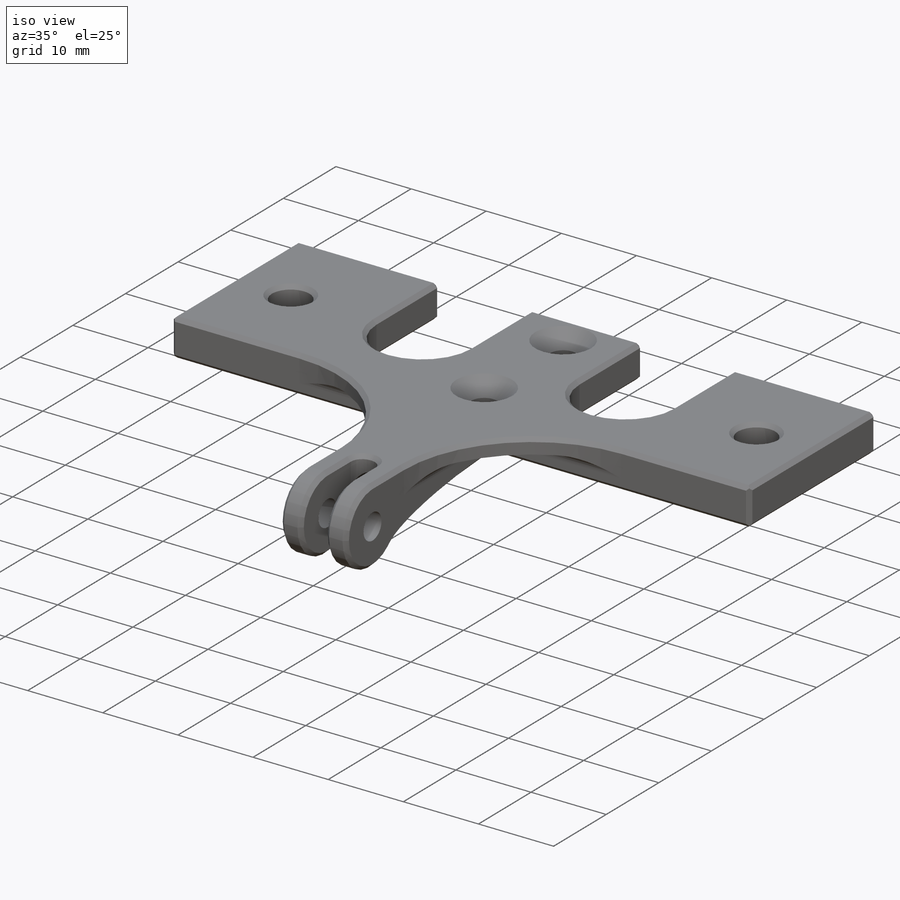
[diagram: iso view]
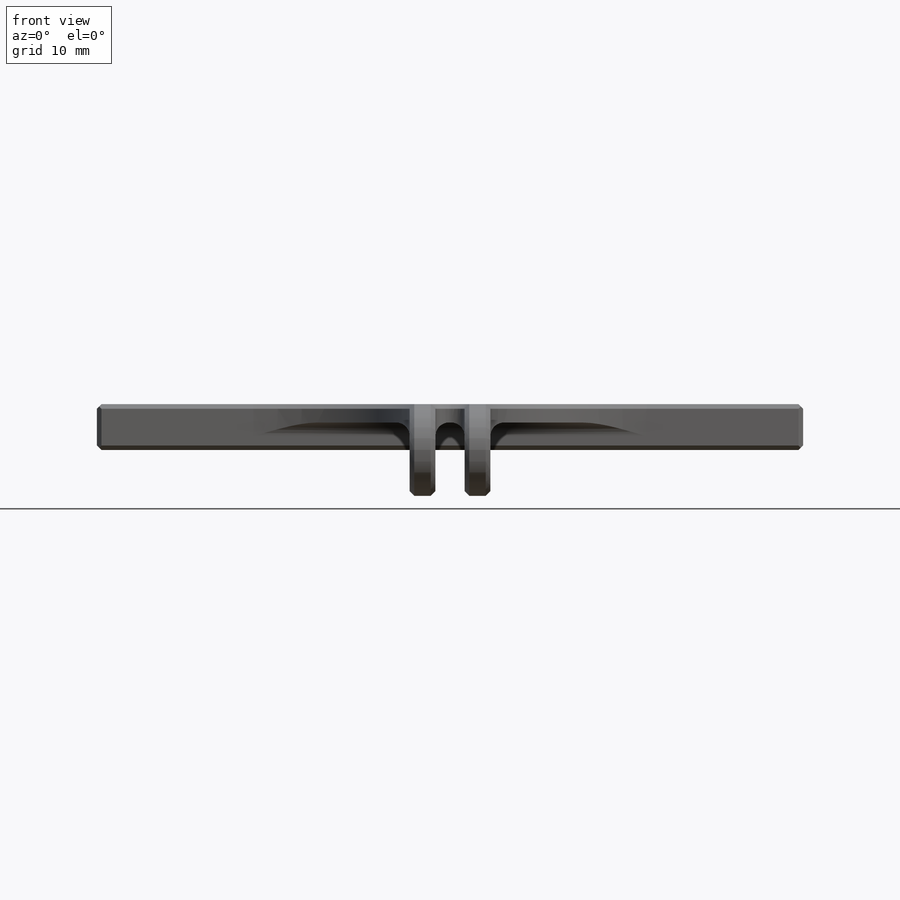
[diagram: front view]
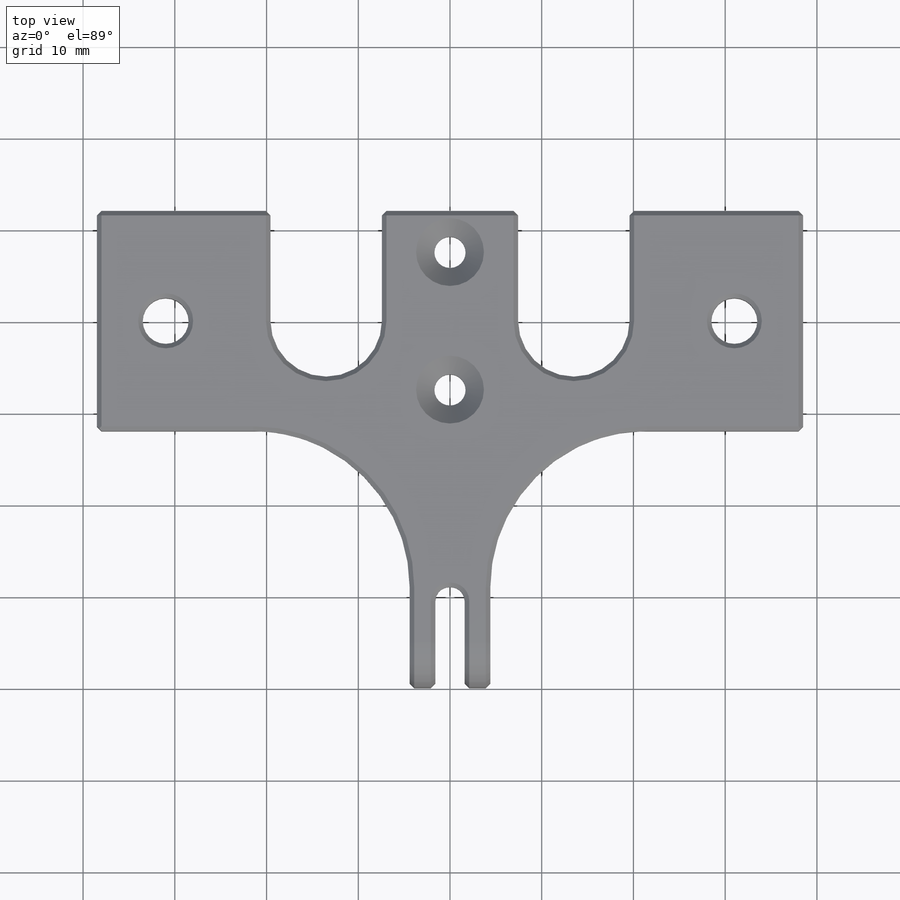
[diagram: top view]
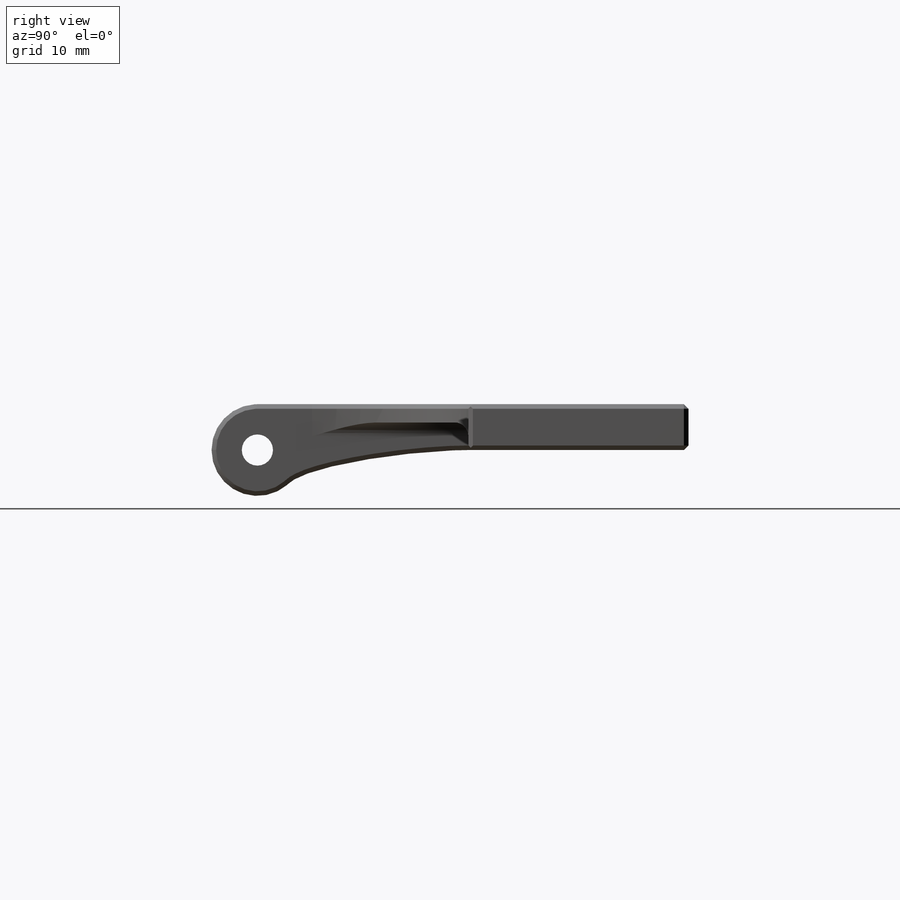
[diagram: right view]
SOLIDWORKS PART (.sldprt)
format: sldprt  version: not decoded by parser v0  size: 450,560 bytes
history: native  units: mm
features: sketch x5, extrude x4, chamfer x3, material x1, cut_extrude x1, fillet x1 + 1 further entry (+11 scaffold rows collapsed)
feature tree (27):
  scaffold x11  (default folders/planes/origin — collapsed)
  material  "Material <not specified>"
  "Annotations"  RD1=4.4mm
  sketch  "Sketch1"  dims[c1.D3=~12.971746mm c1.D5=5.0mm c1.D6=12.15mm c1.D7=3.4mm c1.D1=~35.653211mm c1.D2=~133.660448mm c2.D1=24.0mm c2.D2=77.0mm c2.D3=27.0mm c2.D4=62.0mm c2.D7=~1.800989mm c2.D8=7.5mm c2.D9=7.5mm]
  extrude  "Boss-Extrude1"  Depth=5mm
  chamfer  "Chamfer2"  Distance=2mm Angle=45deg
  sketch  "Sketch2"  dims[D3=16.0mm D1=2.4mm D2=2.4mm]
  cut_extrude  "Cut-Extrude1"  Depth=0.6mm
  chamfer  "Chamfer3"  Distance=0.5mm Angle=45deg
  sketch  "Sketch4"  dims[c1.D1=10.0mm c1.D2=3.4mm c1.D3=10.0mm c1.D4=10.0mm c2.D3=23.0mm]
  extrude  "Boss-Extrude3"  Depth=2.8mm
  extrude  "Boss-Extrude4"  [1 undecoded]
  sketch  "Sketch4<2>"  dims[D1=2.8mm D19=1.6mm]
  sketch  "Sketch5"  dims[D1=6.0mm]
  extrude  "Boss-Extrude5"  Depth=2mm
  fillet  "Fillet1"  Radius=1.5mm
  chamfer  "Chamfer4"  Distance=0.5mm Angle=45deg
decode coverage: 13 of 14 modeling features carry decoded parameters; 1 rows unclassified (native names shown)
note: ~ marks probable driven/reference dimensions
note: 1 parameter value undecoded
note: suppression state not decoded; provenance and decode notes live in map.json
